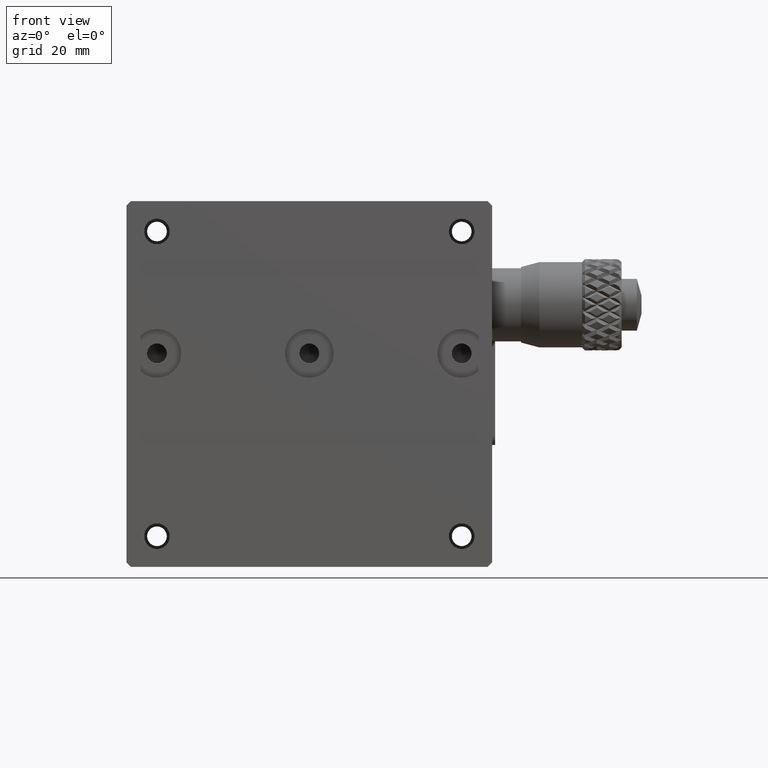
[diagram: clean part render]
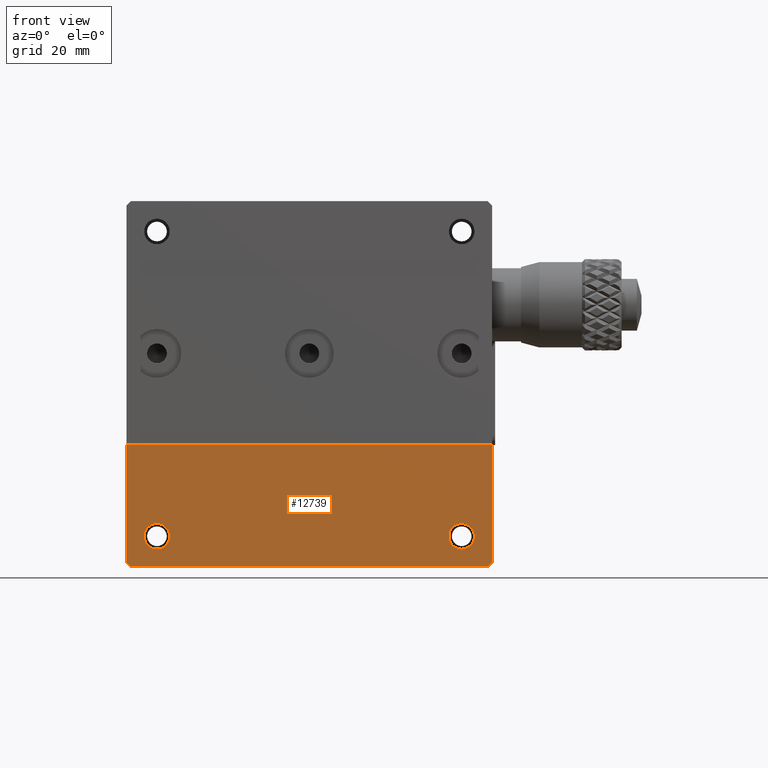
[diagram: same view with one face highlighted and labeled with its STEP entity id]
A machine part, front view. The second image highlights one B-rep face of the part: STEP entity #12739.
In plain terms, the highlighted planar face has unit normal (0, 1, 0).
Its self-contained STEP definition (entity closure, byte-faithful):
#149 = CARTESIAN_POINT ( 'NONE',  ( 60.00000000000000000, -5.782411586589356653E-16, -59.28999999999999915 ) ) ;
#395 = CARTESIAN_POINT ( 'NONE',  ( 55.00000000000000000, 0.000000000000000000, -55.00000000000000000 ) ) ;
#707 = CARTESIAN_POINT ( 'NONE',  ( 55.00000000000000000, 0.000000000000000000, -57.10000000000000142 ) ) ;
#795 = DIRECTION ( 'NONE',  ( 0.000000000000000000, -0.000000000000000000, 1.000000000000000000 ) ) ;
#1281 = EDGE_CURVE ( 'NONE', #19764, #2958, #26486, .T. ) ;
#2700 = VERTEX_POINT ( 'NONE', #17658 ) ;
#2958 = VERTEX_POINT ( 'NONE', #8770 ) ;
#3618 = CARTESIAN_POINT ( 'NONE',  ( 0.7100000000000009637, 0.000000000000000000, -60.00000000000000000 ) ) ;
#3788 = EDGE_CURVE ( 'NONE', #6768, #6768, #9168, .T. ) ;
#4331 = CARTESIAN_POINT ( 'NONE',  ( 1.084202172485504434E-16, 0.000000000000000000, -59.28999999999999915 ) ) ;
#4417 = CARTESIAN_POINT ( 'NONE',  ( 59.28999999999999915, -2.312964634635742661E-15, -60.00000000000000000 ) ) ;
#4453 = EDGE_CURVE ( 'NONE', #15786, #15786, #13838, .T. ) ;
#4845 = DIRECTION ( 'NONE',  ( 0.000000000000000000, -1.000000000000000000, 0.000000000000000000 ) ) ;
#4906 = ORIENTED_EDGE ( 'NONE', *, *, #26921, .T. ) ;
#5094 = VECTOR ( 'NONE', #13921, 1000.000000000000000 ) ;
#5414 = FACE_OUTER_BOUND ( 'NONE', #25031, .T. ) ;
#5729 = LINE ( 'NONE', #3618, #18696 ) ;
#6616 = EDGE_LOOP ( 'NONE', ( #23111 ) ) ;
#6724 = ORIENTED_EDGE ( 'NONE', *, *, #1281, .T. ) ;
#6768 = VERTEX_POINT ( 'NONE', #707 ) ;
#6886 = CARTESIAN_POINT ( 'NONE',  ( 60.00000000000000000, 0.000000000000000000, -59.28999999999999915 ) ) ;
#7141 = LINE ( 'NONE', #11538, #5094 ) ;
#7150 = CARTESIAN_POINT ( 'NONE',  ( 60.00000000000000000, 0.000000000000000000, -0.7099999999999999645 ) ) ;
#7367 = ORIENTED_EDGE ( 'NONE', *, *, #25256, .F. ) ;
#7507 = DIRECTION ( 'NONE',  ( -1.000000000000000000, -0.000000000000000000, 0.000000000000000000 ) ) ;
#7548 = DIRECTION ( 'NONE',  ( 0.000000000000000000, 1.000000000000000000, 0.000000000000000000 ) ) ;
#8159 = DIRECTION ( 'NONE',  ( 0.7071067811865500152, 0.000000000000000000, -0.7071067811865450192 ) ) ;
#8770 = CARTESIAN_POINT ( 'NONE',  ( 60.00000000000000000, 0.000000000000000000, -40.00000000000000000 ) ) ;
#8883 = AXIS2_PLACEMENT_3D ( 'NONE', #20526, #7548, #795 ) ;
#9007 = DIRECTION ( 'NONE',  ( 0.000000000000000000, 0.000000000000000000, -1.000000000000000000 ) ) ;
#9168 = CIRCLE ( 'NONE', #15882, 2.099999999999997868 ) ;
#9306 = EDGE_CURVE ( 'NONE', #19764, #22964, #9437, .T. ) ;
#9411 = ORIENTED_EDGE ( 'NONE', *, *, #3788, .F. ) ;
#9437 = LINE ( 'NONE', #6886, #20392 ) ;
#9444 = VECTOR ( 'NONE', #24626, 1000.000000000000000 ) ;
#10856 = DIRECTION ( 'NONE',  ( 0.000000000000000000, -1.000000000000000000, 0.000000000000000000 ) ) ;
#11310 = CARTESIAN_POINT ( 'NONE',  ( 5.000000000000000000, 0.000000000000000000, -57.09999999999999432 ) ) ;
#11489 = VERTEX_POINT ( 'NONE', #23241 ) ;
#11538 = CARTESIAN_POINT ( 'NONE',  ( 0.000000000000000000, 0.000000000000000000, -59.28999999999999915 ) ) ;
#11828 = VECTOR ( 'NONE', #13658, 1000.000000000000000 ) ;
#12739 = ADVANCED_FACE ( 'NONE', ( #5414, #18124, #24758 ), #16002, .F. ) ;
#12864 = VERTEX_POINT ( 'NONE', #4331 ) ;
#13658 = DIRECTION ( 'NONE',  ( 0.000000000000000000, 0.000000000000000000, 1.000000000000000000 ) ) ;
#13838 = CIRCLE ( 'NONE', #26448, 2.099999999999990763 ) ;
#13921 = DIRECTION ( 'NONE',  ( 0.000000000000000000, 0.000000000000000000, -1.000000000000000000 ) ) ;
#14065 = LINE ( 'NONE', #16022, #9444 ) ;
#15721 = DIRECTION ( 'NONE',  ( 0.000000000000000000, 0.000000000000000000, -1.000000000000000000 ) ) ;
#15786 = VERTEX_POINT ( 'NONE', #11310 ) ;
#15882 = AXIS2_PLACEMENT_3D ( 'NONE', #395, #10856, #9007 ) ;
#16002 = PLANE ( 'NONE',  #8883 ) ;
#16022 = CARTESIAN_POINT ( 'NONE',  ( 0.000000000000000000, 0.000000000000000000, -40.00000000000000000 ) ) ;
#16522 = LINE ( 'NONE', #26843, #18401 ) ;
#17658 = CARTESIAN_POINT ( 'NONE',  ( 0.000000000000000000, 0.000000000000000000, -40.00000000000000000 ) ) ;
#18124 = FACE_BOUND ( 'NONE', #26777, .T. ) ;
#18401 = VECTOR ( 'NONE', #7507, 1000.000000000000000 ) ;
#18519 = EDGE_CURVE ( 'NONE', #12864, #11489, #5729, .T. ) ;
#18696 = VECTOR ( 'NONE', #8159, 1000.000000000000000 ) ;
#18902 = ORIENTED_EDGE ( 'NONE', *, *, #23727, .F. ) ;
#19764 = VERTEX_POINT ( 'NONE', #149 ) ;
#20392 = VECTOR ( 'NONE', #23958, 1000.000000000000114 ) ;
#20526 = CARTESIAN_POINT ( 'NONE',  ( 0.000000000000000000, 0.000000000000000000, 0.000000000000000000 ) ) ;
#22964 = VERTEX_POINT ( 'NONE', #4417 ) ;
#23070 = ORIENTED_EDGE ( 'NONE', *, *, #18519, .T. ) ;
#23111 = ORIENTED_EDGE ( 'NONE', *, *, #4453, .F. ) ;
#23241 = CARTESIAN_POINT ( 'NONE',  ( 0.7100000000000069589, 0.000000000000000000, -60.00000000000000000 ) ) ;
#23727 = EDGE_CURVE ( 'NONE', #2700, #2958, #14065, .T. ) ;
#23958 = DIRECTION ( 'NONE',  ( -0.7071067811865474617, 0.000000000000000000, -0.7071067811865474617 ) ) ;
#24191 = CARTESIAN_POINT ( 'NONE',  ( 5.000000000000000000, 0.000000000000000000, -55.00000000000000000 ) ) ;
#24626 = DIRECTION ( 'NONE',  ( 1.000000000000000000, 0.000000000000000000, -0.000000000000000000 ) ) ;
#24758 = FACE_BOUND ( 'NONE', #6616, .T. ) ;
#25031 = EDGE_LOOP ( 'NONE', ( #4906, #23070, #7367, #25830, #6724, #18902 ) ) ;
#25256 = EDGE_CURVE ( 'NONE', #22964, #11489, #16522, .T. ) ;
#25830 = ORIENTED_EDGE ( 'NONE', *, *, #9306, .F. ) ;
#26448 = AXIS2_PLACEMENT_3D ( 'NONE', #24191, #4845, #15721 ) ;
#26486 = LINE ( 'NONE', #7150, #11828 ) ;
#26777 = EDGE_LOOP ( 'NONE', ( #9411 ) ) ;
#26843 = CARTESIAN_POINT ( 'NONE',  ( 0.000000000000000000, 0.000000000000000000, -60.00000000000000000 ) ) ;
#26921 = EDGE_CURVE ( 'NONE', #2700, #12864, #7141, .T. ) ;